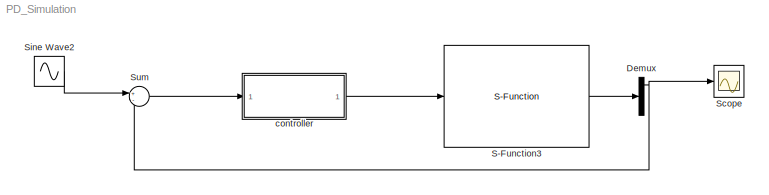
MODEL PD_Simulation
KIND model
BLOCK [Demux] Demux
  DisplayOption = bar
  Ports = [1, 4]
  SID = 109
BLOCK [S-Function] S-Function3
  EnableBusSupport = off
  FunctionName = NonLinModel
  Parameters = X0,P
  Ports = [1, 1]
  SID = 61
BLOCK [Scope] Scope
  DataFormat = StructureWithTime
  Floating = off
  NumInputPorts = 1
  Ports = [1]
  SID = 99
  SampleTime = 0
  YMax = 2.7
  YMin = 0.5
BLOCK [Sin] Sine Wave2
  Amplitude = 60*(pi/180)
  Bias = pi/2
  Frequency = (1/3)*(2*pi)
  Ports = [0, 1]
  SID = 100
  SampleTime = 0
BLOCK [Sum] Sum
  IconShape = round
  InputSameDT = off
  Inputs = +-
  OutDataTypeStr = Inherit: Inherit via internal rule
  Ports = [2, 1]
  SID = 101
  SaturateOnIntegerOverflow = off
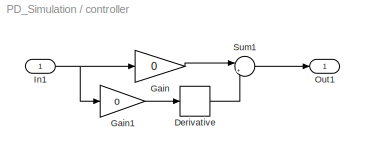
BLOCK [SubSystem] controller
  FunctionWithSeparateData = off
  MaskHideContents = off
  MinAlgLoopOccurrences = off
  Opaque = off
  Ports = [1, 1]
  PropExecContextOutsideSubsystem = off
  RTWSystemCode = Auto
  RequestExecContextInheritance = off
  SID = 102
BLOCK [Derivative] controller/Derivative
  SID = 104
BLOCK [Gain] controller/Gain
  Gain = 0
  OutDataTypeStr = Inherit: Inherit via internal rule
  ParamDataTypeStr = Inherit: Inherit via internal rule
  SID = 105
  SaturateOnIntegerOverflow = off
BLOCK [Gain] controller/Gain1
  Gain = 0
  OutDataTypeStr = Inherit: Inherit via internal rule
  ParamDataTypeStr = Inherit: Inherit via internal rule
  SID = 106
  SaturateOnIntegerOverflow = off
BLOCK [Inport] controller/In1
  IconDisplay = Port number
  SID = 103
BLOCK [Outport] controller/Out1
  IconDisplay = Port number
  SID = 108
BLOCK [Sum] controller/Sum1
  IconShape = round
  InputSameDT = off
  Inputs = |++
  OutDataTypeStr = Inherit: Inherit via internal rule
  Ports = [2, 1]
  SID = 107
  SaturateOnIntegerOverflow = off
NET Demux:1 -> Scope:1, Sum:2
LINE S-Function3:1 -> Demux:1
LINE Sine Wave2:1 -> Sum:1
LINE Sum:1 -> controller:1
LINE controller/Derivative:1 -> controller/Sum1:2
LINE controller/Gain1:1 -> controller/Derivative:1
LINE controller/Gain:1 -> controller/Sum1:1
NET controller/In1:1 -> controller/Gain1:1, controller/Gain:1
LINE controller/Sum1:1 -> controller/Out1:1
LINE controller:1 -> S-Function3:1
note: NET lines group one-source signal fan-out (src -> all destinations, sorted); 1:1 wires keep LINE
